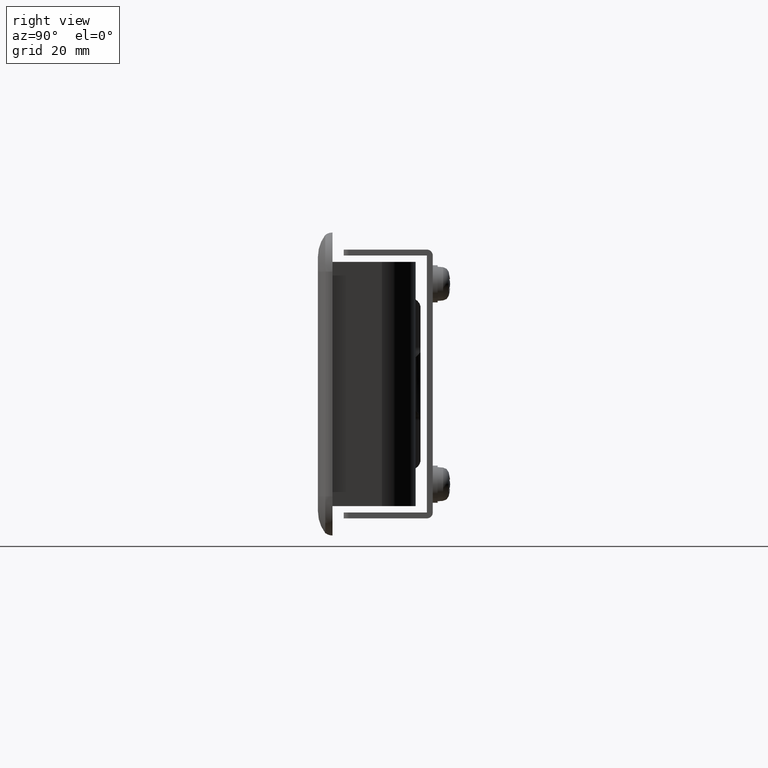
[diagram: clean part render]
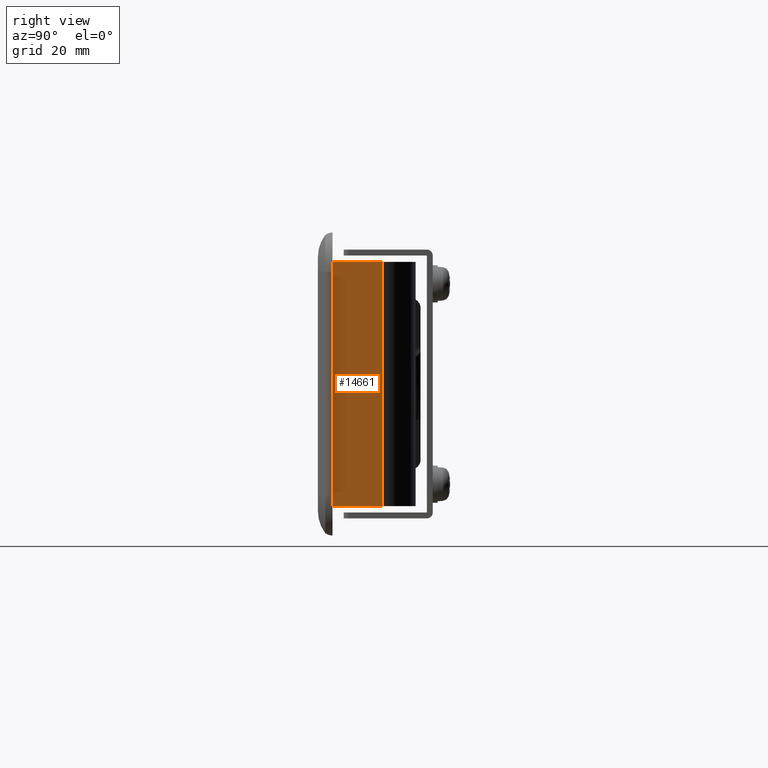
[diagram: same view with one face highlighted and labeled with its STEP entity id]
A machine part, right view. The second image highlights one B-rep face of the part: STEP entity #14661.
In plain terms, the highlighted face is a freeform B-spline surface patch.
Its self-contained STEP definition (entity closure, byte-faithful):
#14495=CARTESIAN_POINT('',(59.568000000000012,-3.250000000000000,25.0));
#14496=VERTEX_POINT('',#14495);
#14502=CARTESIAN_POINT('',(55.896000000000001,6.841000000000000,25.0));
#14503=VERTEX_POINT('',#14502);
#14504=CARTESIAN_POINT('',(55.896000000000001,6.841000000000000,25.0));
#14505=CARTESIAN_POINT('',(59.568000000000012,-3.250000000000000,25.0));
#14506=QUASI_UNIFORM_CURVE('',1,(#14504,#14505),.UNSPECIFIED.,.F.,.U.);
#14507=EDGE_CURVE('',#14503,#14496,#14506,.T.);
#14552=CARTESIAN_POINT('',(55.896000000000001,6.841000000000000,-25.0));
#14553=VERTEX_POINT('',#14552);
#14564=CARTESIAN_POINT('',(59.568000000000012,-3.250000000000000,-25.0));
#14565=VERTEX_POINT('',#14564);
#14566=CARTESIAN_POINT('',(55.896000000000001,6.841000000000000,-25.0));
#14567=CARTESIAN_POINT('',(59.568000000000012,-3.250000000000000,-25.0));
#14568=QUASI_UNIFORM_CURVE('',1,(#14566,#14567),.UNSPECIFIED.,.F.,.U.);
#14569=EDGE_CURVE('',#14553,#14565,#14568,.T.);
#14642=CARTESIAN_POINT('',(55.712583572646942,7.345045525168772,-27.497499903090290));
#14643=CARTESIAN_POINT('',(59.751416493013451,-3.754045705609948,-27.497499903090290));
#14644=CARTESIAN_POINT('',(55.712583572646942,7.345045525168772,27.497501244194801));
#14645=CARTESIAN_POINT('',(59.751416493013451,-3.754045705609948,27.497501244194801));
#14646=B_SPLINE_SURFACE_WITH_KNOTS('',1,1,((#14642,#14644),(#14643,#14645)),.UNSPECIFIED.,.F.,.F.,.U.,(2,2),(2,2),(0.0,11.811096371962490),(0.0,54.995001147285102),.UNSPECIFIED.);
#14647=ORIENTED_EDGE('',*,*,#14507,.T.);
#14648=CARTESIAN_POINT('',(59.568000000000012,-3.250000000000000,-25.0));
#14649=CARTESIAN_POINT('',(59.568000000000012,-3.250000000000000,25.0));
#14650=QUASI_UNIFORM_CURVE('',1,(#14648,#14649),.UNSPECIFIED.,.F.,.U.);
#14651=EDGE_CURVE('',#14565,#14496,#14650,.T.);
#14652=ORIENTED_EDGE('',*,*,#14651,.F.);
#14653=ORIENTED_EDGE('',*,*,#14569,.F.);
#14654=CARTESIAN_POINT('',(55.896000000000001,6.841000000000000,-25.0));
#14655=CARTESIAN_POINT('',(55.896000000000001,6.841000000000000,25.0));
#14656=QUASI_UNIFORM_CURVE('',1,(#14654,#14655),.UNSPECIFIED.,.F.,.U.);
#14657=EDGE_CURVE('',#14553,#14503,#14656,.T.);
#14658=ORIENTED_EDGE('',*,*,#14657,.T.);
#14659=EDGE_LOOP('',(#14647,#14652,#14653,#14658));
#14660=FACE_OUTER_BOUND('',#14659,.T.);
#14661=ADVANCED_FACE('',(#14660),#14646,.F.);